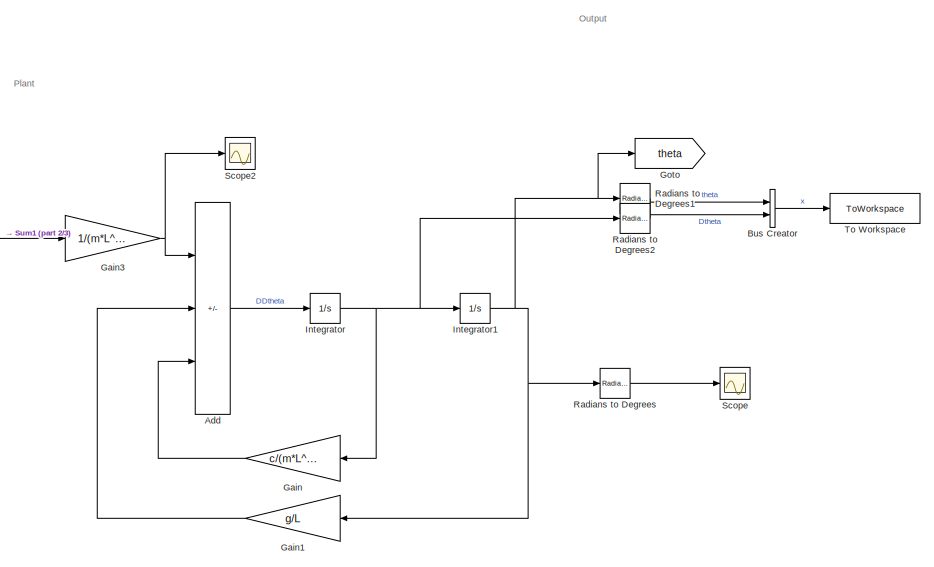
[diagram: root canvas - part 1/3, top right region]
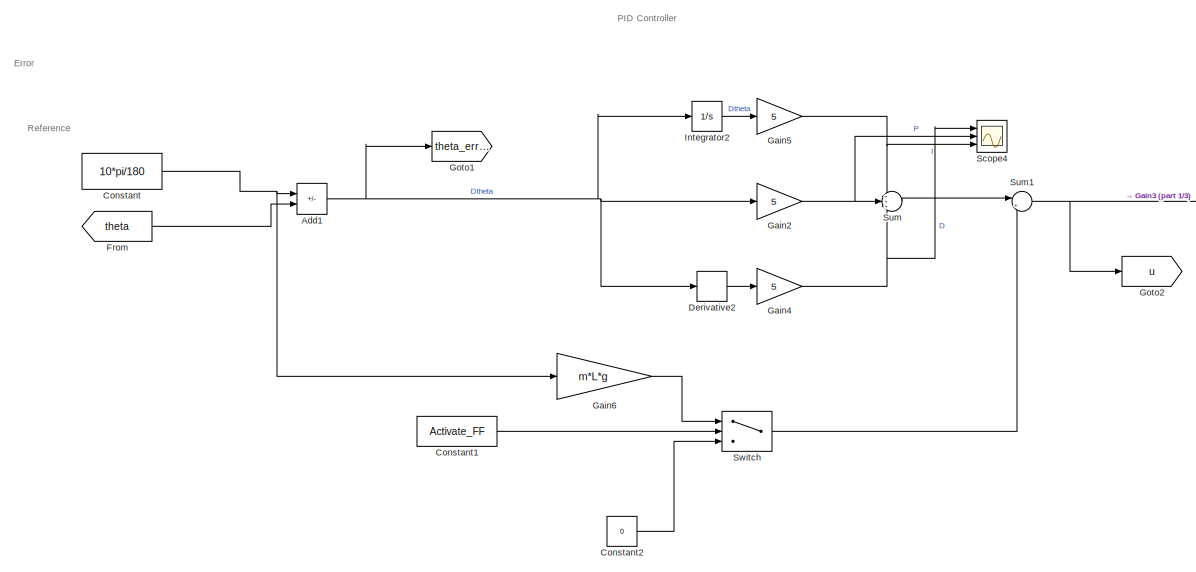
[diagram: root canvas - part 2/3, top left region]
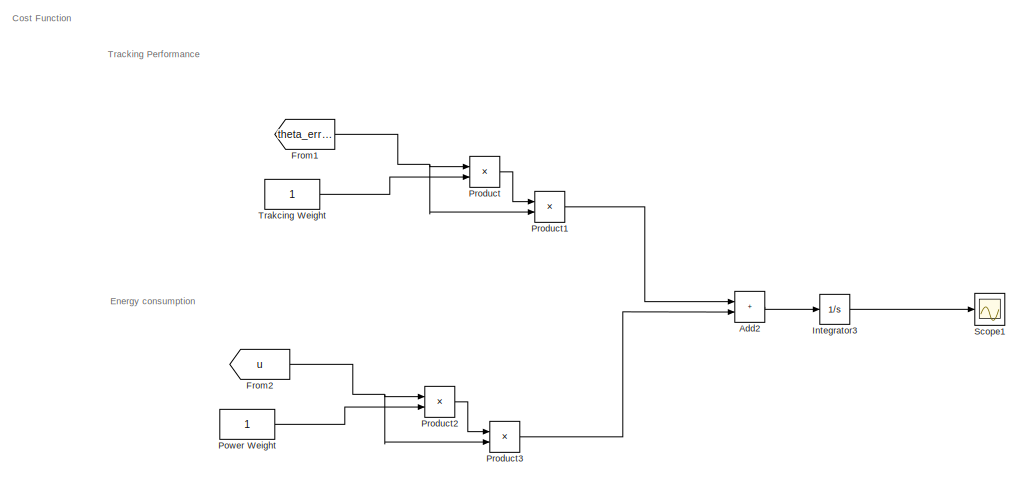
[diagram: root canvas - part 3/3, bottom center region]
MODEL slx_7ef3e5d5ddfb
KIND model
CONFIG AbsTol = auto
CONFIG EnableMultiTasking = off
CONFIG FixedStep = .01
CONFIG MaxStep = .01
CONFIG MinStep = auto
CONFIG RelTol = 1e-3
CONFIG SampleTimeConstraint = Unconstrained
CONFIG Solver = FixedStepAuto
CONFIG SolverName = FixedStepAuto
CONFIG StartTime = 0.0
CONFIG StopTime = 10
BLOCK [Sum] Add
  IconShape = rectangular
  Inputs = +--
  Ports = [3, 1]
BLOCK [Sum] Add1
  IconShape = rectangular
  Inputs = +-
  Ports = [2, 1]
BLOCK [Sum] Add2
  IconShape = rectangular
  Ports = [2, 1]
BLOCK [BusCreator] Bus Creator
  DisplayOption = bar
  InheritFromInputs = on
  Inputs = 2
  Ports = [2, 1]
BLOCK [Constant] Constant
  Value = 10*pi/180
BLOCK [Constant] Constant1
  Value = Activate_FF
BLOCK [Constant] Constant2
  Value = 0
BLOCK [Derivative] Derivative2
BLOCK [From] From
  GotoTag = theta
BLOCK [From] From1
  GotoTag = theta_error
BLOCK [From] From2
  GotoTag = u
BLOCK [Gain] Gain
  Gain = c/(m*L^2)
  NameLocation = top
BLOCK [Gain] Gain1
  Gain = g/L
  NameLocation = top
BLOCK [Gain] Gain2
  Gain = 5
BLOCK [Gain] Gain3
  Gain = 1/(m*L^2)
BLOCK [Gain] Gain4
  Gain = 5
BLOCK [Gain] Gain5
  Gain = 5
BLOCK [Gain] Gain6
  Gain = m*L*g
BLOCK [Goto] Goto
  GotoTag = theta
BLOCK [Goto] Goto1
  GotoTag = theta_error
BLOCK [Goto] Goto2
  GotoTag = u
BLOCK [Integrator] Integrator
  Ports = [1, 1]
BLOCK [Integrator] Integrator1
  Ports = [1, 1]
BLOCK [Integrator] Integrator2
  Ports = [1, 1]
BLOCK [Integrator] Integrator3
  Ports = [1, 1]
BLOCK [Constant] Power Weight
BLOCK [Product] Product
  Ports = [2, 1]
BLOCK [Product] Product1
  Ports = [2, 1]
BLOCK [Product] Product2
  Ports = [2, 1]
BLOCK [Product] Product3
  Ports = [2, 1]
BLOCK [Reference] Radians to Degrees  REF=simulink_extras/Transformations/Radians
to Degrees
  Ports = [1, 1]
  SourceBlock = simulink_extras/Transformations/Radians\nto Degrees
  SourceProductBaseCode = SL
  SourceType = RadiansToDegrees
BLOCK [Reference] Radians to Degrees1  REF=simulink_extras/Transformations/Radians
to Degrees
  Ports = [1, 1]
  SourceBlock = simulink_extras/Transformations/Radians\nto Degrees
  SourceProductBaseCode = SL
  SourceType = RadiansToDegrees
BLOCK [Reference] Radians to Degrees2  REF=simulink_extras/Transformations/Radians
to Degrees
  Ports = [1, 1]
  SourceBlock = simulink_extras/Transformations/Radians\nto Degrees
  SourceProductBaseCode = SL
  SourceType = RadiansToDegrees
BLOCK [Scope] Scope
  Floating = off
  NumInputPorts = 1
  Ports = [1]
  ScopeSpecificationString = Simulink.scopes.TimeScopeBlockCfg('CurrentConfiguration', extmgr.ConfigurationSet(extmgr.Configuration('Core','General UI',true),extmgr.Configuration('Core','Source UI',true),extmgr.Configuration('Sources','WiredSimulink',true),extmgr.Configuration('Visuals','Time Domain',true,'SerializedDisplays',{struct('MinYLimReal','-1.52395','MaxYLimReal','13.71551','YLabelReal','','MinYLimMag','0.00000','Max...<+1415ch>
BLOCK [Scope] Scope1
  Floating = off
  NumInputPorts = 1
  Ports = [1]
  ScopeSpecificationString = Simulink.scopes.TimeScopeBlockCfg('CurrentConfiguration', extmgr.ConfigurationSet(extmgr.Configuration('Core','General UI',true),extmgr.Configuration('Core','Source UI',true),extmgr.Configuration('Sources','WiredSimulink',true,'DataLoggingVariableName','ScopeData1'),extmgr.Configuration('Visuals','Time Domain',true,'SerializedDisplays',{struct('MinYLimReal','-3.741','MaxYLimReal','33.66899','YLabe...<+1424ch>
BLOCK [Scope] Scope2
  Floating = off
  NumInputPorts = 1
  Ports = [1]
  ScopeSpecificationString = Simulink.scopes.TimeScopeBlockCfg('CurrentConfiguration', extmgr.ConfigurationSet(extmgr.Configuration('Core','General UI',true),extmgr.Configuration('Core','Source UI',true),extmgr.Configuration('Sources','WiredSimulink',true,'DataLoggingVariableName','ScopeData2'),extmgr.Configuration('Visuals','Time Domain',true,'SerializedDisplays',{struct('MinYLimReal','0.62217','MaxYLimReal','1.96703','YLabe...<+1416ch>
BLOCK [Scope] Scope4
  Floating = off
  NumInputPorts = 3
  Ports = [3]
  ScopeSpecificationString = Simulink.scopes.TimeScopeBlockCfg('CurrentConfiguration', extmgr.ConfigurationSet(extmgr.Configuration('Core','General UI',true),extmgr.Configuration('Core','Source UI',true),extmgr.Configuration('Sources','WiredSimulink',true,'DataLoggingVariableName','ScopeData4'),extmgr.Configuration('Visuals','Time Domain',true,'SerializedDisplays',{struct('MinYLimReal','-1.48945','MaxYLimReal','2.35965','YLab...<+1422ch>
BLOCK [Sum] Sum
  Inputs = +++
  Ports = [3, 1]
BLOCK [Sum] Sum1
  Inputs = |++
  Ports = [2, 1]
BLOCK [Switch] Switch
  Criteria = u2 > Threshold
  InputSameDT = off
  SaturateOnIntegerOverflow = off
BLOCK [ToWorkspace] To Workspace
  FixptAsFi = on
  MaxDataPoints = inf
  Ports = [1]
  SampleTime = -1
  SaveFormat = Timeseries
  VariableName = Att
BLOCK [Constant] Trakcing Weight
ANNOTATION (root): Cost Function
ANNOTATION (root): Energy consumption
ANNOTATION (root): Error
ANNOTATION (root): Output
ANNOTATION (root): PID Controller
ANNOTATION (root): Plant
ANNOTATION (root): Reference
ANNOTATION (root): Tracking Performance
NET Add1:1 -> Derivative2:1, Gain2:1, Goto1:1, Integrator2:1
LINE Add2:1 -> Integrator3:1
LINE Add:1 -> Integrator:1
LINE Bus Creator:1 -> To Workspace:1
LINE Constant1:1 -> Switch:2
LINE Constant2:1 -> Switch:3
NET Constant:1 -> Add1:1, Gain6:1
LINE Derivative2:1 -> Gain4:1
NET From1:1 -> Product1:2, Product:1
NET From2:1 -> Product2:1, Product3:2
LINE From:1 -> Add1:2
LINE Gain1:1 -> Add:2
NET Gain2:1 -> Scope4:2, Sum:2
NET Gain3:1 -> Add:1, Scope2:1
NET Gain4:1 -> Scope4:1, Sum:3
NET Gain5:1 -> Scope4:3, Sum:1
LINE Gain6:1 -> Switch:1
LINE Gain:1 -> Add:3
NET Integrator1:1 -> Gain1:1, Goto:1, Radians to Degrees1:1, Radians to Degrees:1
LINE Integrator2:1 -> Gain5:1
LINE Integrator3:1 -> Scope1:1
NET Integrator:1 -> Gain:1, Integrator1:1, Radians to Degrees2:1
LINE Power Weight:1 -> Product2:2
LINE Product1:1 -> Add2:1
LINE Product2:1 -> Product3:1
LINE Product3:1 -> Add2:2
LINE Product:1 -> Product1:1
LINE Radians to Degrees1:1 -> Bus Creator:1
LINE Radians to Degrees2:1 -> Bus Creator:2
LINE Radians to Degrees:1 -> Scope:1
NET Sum1:1 -> Gain3:1, Goto2:1
LINE Sum:1 -> Sum1:1
LINE Switch:1 -> Sum1:2
LINE Trakcing Weight:1 -> Product:2
note: NET lines group one-source signal fan-out (src -> all destinations, sorted); 1:1 wires keep LINE
